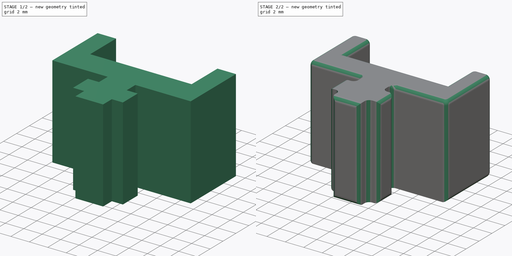
[diagram: build sequence overview — one tinted view per stage of 2, left to right]
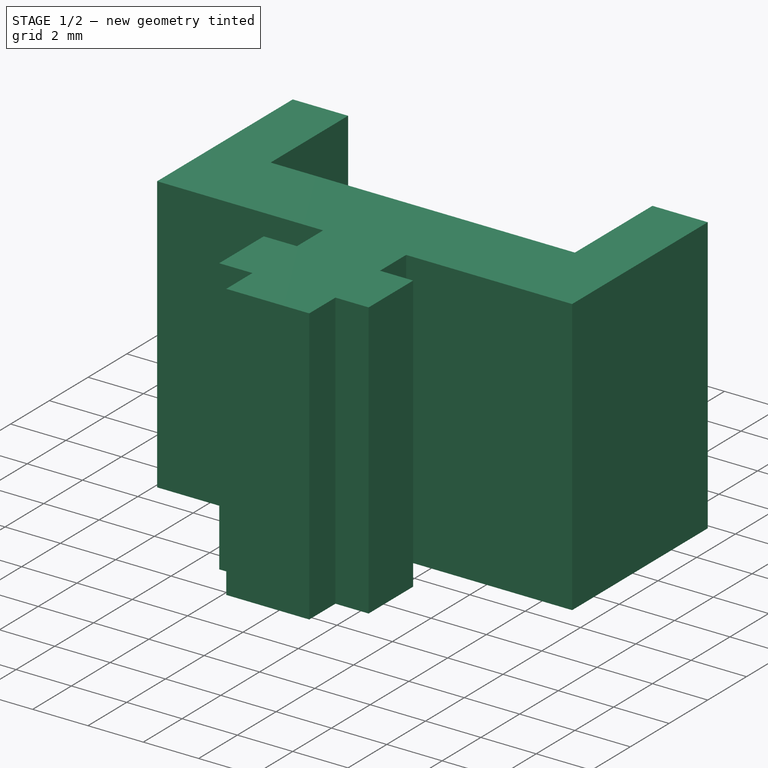
[diagram: stage 1 of 2 — iso view after this stage's code; geometry added in this stage tinted green]
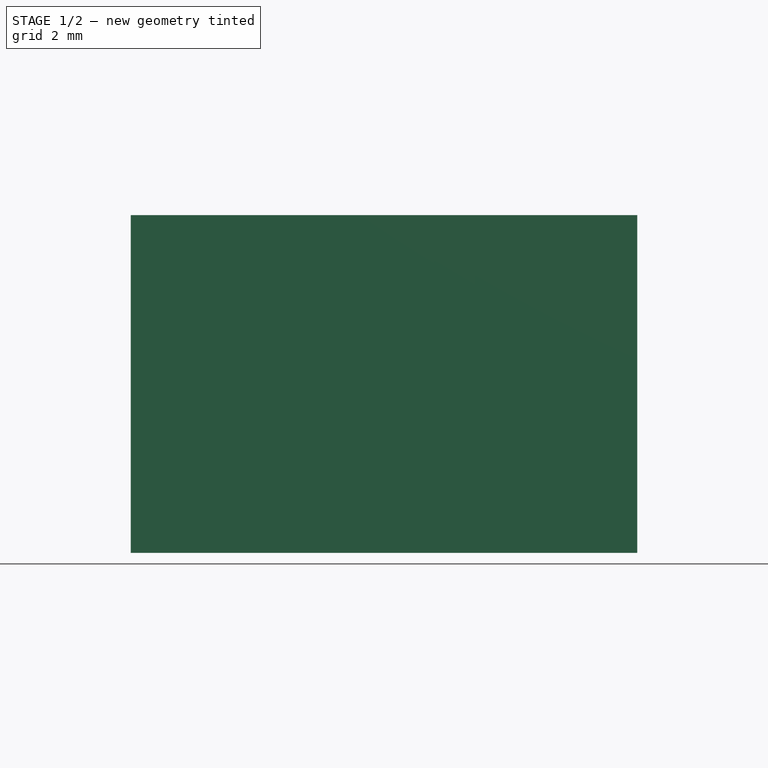
[diagram: stage 1 of 2 — front view after this stage's code; geometry added in this stage tinted green]
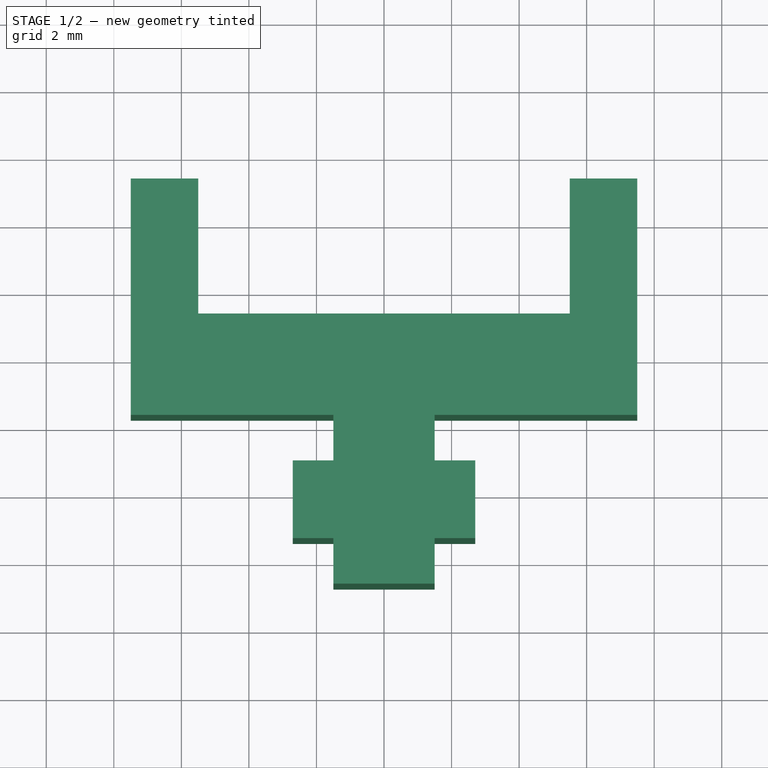
[diagram: stage 1 of 2 — top view after this stage's code; geometry added in this stage tinted green]
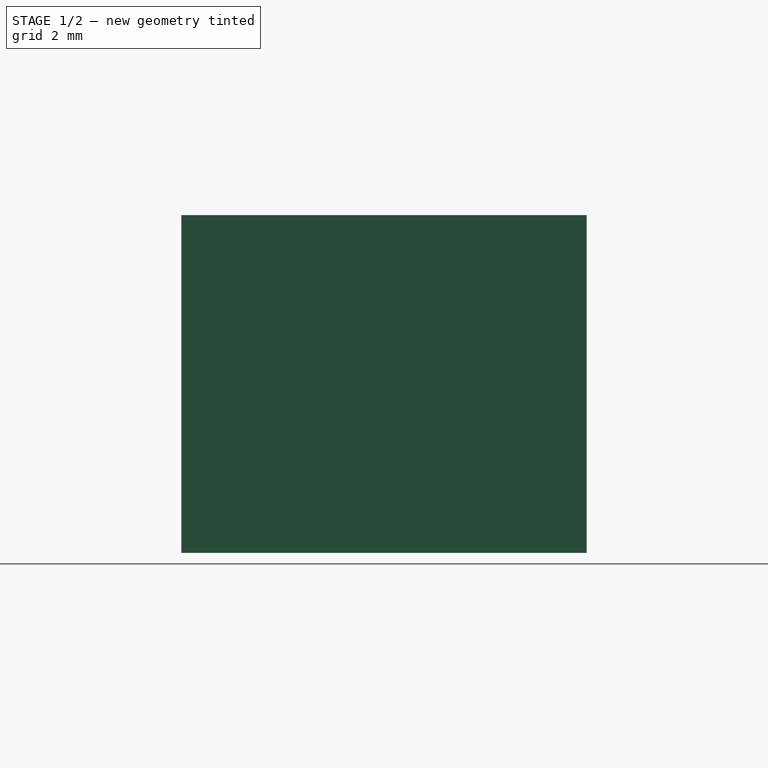
[diagram: stage 1 of 2 — right view after this stage's code; geometry added in this stage tinted green]
FCSTD DOCUMENT  (FreeCAD 0.21R33694 (Git))
Label: MakerbeamXl_plastic_slidein_adapter
License: All rights reserved
LicenseURL: https://en.wikipedia.org/wiki/All_rights_reserved
objects: Sketcher::SketchObject×1, PartDesign::Pad×1, PartDesign::Fillet×1, PartDesign::Body×1
note: 6 computed .brp shape members not serialized (recipe doc carries the construction recipe); baked Part::Feature solids carry a one-line shape summary decoded from their .brp

FEATURE [Sketcher::SketchObject] Sketch
  FullyConstrained = true
  MapMode = 5
  Support = -> [XY_Plane]
  sketch-geometry (26):
    g0: LineSegment StartX=-7.5 StartY=23.2831 StartZ=0 EndX=-7.5 EndY=16.2831 EndZ=0
    g1: LineSegment StartX=-7.5 StartY=16.2831 StartZ=0 EndX=-1.5 EndY=16.2831 EndZ=0
    g2: LineSegment StartX=-1.5 StartY=16.2831 StartZ=0 EndX=-1.5 EndY=14.9331 EndZ=0
    g3: LineSegment StartX=-1.5 StartY=14.9331 StartZ=0 EndX=-2.7 EndY=14.9331 EndZ=0
    g4: LineSegment StartX=-2.7 StartY=14.9331 StartZ=0 EndX=-2.7 EndY=12.6331 EndZ=0
    g5: LineSegment StartX=-2.7 StartY=12.6331 StartZ=0 EndX=-1.5 EndY=12.6331 EndZ=0
    g6: LineSegment StartX=-1.5 StartY=12.6331 StartZ=0 EndX=-1.5 EndY=11.2831 EndZ=0
    g7: LineSegment StartX=-1.5 StartY=11.2831 StartZ=0 EndX=1.5 EndY=11.2831 EndZ=0
    g8: LineSegment StartX=1.5 StartY=11.2831 StartZ=0 EndX=1.5 EndY=12.6331 EndZ=0
    g9: LineSegment StartX=1.5 StartY=12.6331 StartZ=0 EndX=2.7 EndY=12.6331 EndZ=0
    g10: LineSegment StartX=2.7 StartY=12.6331 StartZ=0 EndX=2.7 EndY=14.9331 EndZ=0
    g11: LineSegment StartX=2.7 StartY=14.9331 StartZ=0 EndX=1.5 EndY=14.9331 EndZ=0
    g12: LineSegment StartX=1.5 StartY=14.9331 StartZ=0 EndX=1.5 EndY=16.2831 EndZ=0
    g13: LineSegment StartX=1.5 StartY=16.2831 StartZ=0 EndX=7.5 EndY=16.2831 EndZ=0
    g14: LineSegment StartX=7.5 StartY=16.2831 StartZ=0 EndX=7.5 EndY=23.2831 EndZ=0
    g15: LineSegment StartX=7.5 StartY=23.2831 StartZ=0 EndX=5.5 EndY=23.2831 EndZ=0
    g16: LineSegment StartX=5.5 StartY=23.2831 StartZ=0 EndX=5.5 EndY=19.2831 EndZ=0
    g17: LineSegment StartX=5.5 StartY=19.2831 StartZ=0 EndX=-5.5 EndY=19.2831 EndZ=0
    g18: LineSegment StartX=-5.5 StartY=19.2831 StartZ=0 EndX=-5.5 EndY=23.2831 EndZ=0
    g19: LineSegment StartX=-5.5 StartY=23.2831 StartZ=0 EndX=-7.5 EndY=23.2831 EndZ=0
    g20: LineSegment StartX=-1.5 StartY=12.6331 StartZ=0 EndX=1.5 EndY=12.6331 EndZ=0
    g21: LineSegment StartX=-1.5 StartY=14.9331 StartZ=0 EndX=1.5 EndY=14.9331 EndZ=0
    g22: LineSegment StartX=-1.5 StartY=16.2831 StartZ=0 EndX=1.5 EndY=16.2831 EndZ=0
    g23: LineSegment StartX=-5.5 StartY=23.2831 StartZ=0 EndX=5.5 EndY=23.2831 EndZ=0
    g24: LineSegment StartX=-1.5 StartY=14.9331 StartZ=0 EndX=-1.5 EndY=12.6331 EndZ=0
    g25: LineSegment StartX=1.5 StartY=14.9331 StartZ=0 EndX=1.5 EndY=12.6331 EndZ=0
  constraints (70):
    c: Coincident(g0,g1)
    c: Horizontal(g1)
    c: Coincident(g1,g2)
    c: Coincident(g2,g3)
    c: Horizontal(g3)
    c: Coincident(g3,g4)
    c: Coincident(g4,g5)
    c: Coincident(g5,g6)
    c: Coincident(g6,g7)
    c: Coincident(g7,g8)
    c: Vertical(g8)
    c: Coincident(g8,g9)
    c: Horizontal(g9)
    c: Coincident(g9,g10)
    c: Vertical(g10)
    c: Coincident(g10,g11)
    c: Coincident(g11,g12)
    c: Coincident(g12,g13)
    c: Horizontal(g13)
    c: Coincident(g13,g14)
    c: Vertical(g14)
    c: Coincident(g14,g15)
    c: Coincident(g15,g16)
    c: Vertical(g16)
    c: Coincident(g16,g17)
    c: Horizontal(g17)
    c: Coincident(g17,g18)
    c: Coincident(g18,g19)
    c: Coincident(g19,g0)
    c: Horizontal(g19)
    c: Vertical(g0)
    c: Vertical(g18)
    c: Vertical(g4)
    c: Vertical(g6)
    c: Vertical(g2)
    c: Vertical(g12)
    c: Horizontal(g15)
    c: Horizontal(g11)
    c: Horizontal(g5)
    c: Coincident(g20,g5)
    c: Coincident(g20,g8)
    c: Coincident(g21,g2)
    c: Coincident(g21,g11)
    c: Coincident(g22,g1)
    c: Coincident(g22,g12)
    c: Coincident(g23,g18)
    c: Coincident(g23,g15)
    c: Horizontal(g21)
    c: Horizontal(g20)
    c: Coincident(g24,g2)
    c: Coincident(g24,g5)
    c: Coincident(g25,g11)
    c: Coincident(g25,g8)
    c: Vertical(g24)
    c: Vertical(g25)
    c: Symmetric(g6,g7,g-2)
    c: Symmetric(g18,g15,g-2)
    c: Equal(g15,g19)
    c: Equal(g3,g11)
    c: Equal(g1,g13)
    c: Equal(g0,g14)
    c: DistanceY(g7,g12) = 5
    c: DistanceY(g4,g4) = 2.3
    c: DistanceX(g22,g22) = 3
    c: DistanceX(g3,g3) = 1.2
    c: DistanceX(g0,g14) = 15
    c: Equal(g6,g2)
    c: DistanceX(g19,g19) = 2
    c: DistanceY(g14,g14) = 7
    c: DistanceY(g16,g16) = 4
FEATURE [PartDesign::Pad] Pad
  Direction = (0,0,1)
  Length = 10
  Length2 = 10
  Profile = -> Sketch
  ReferenceAxis = -> Sketch [N_Axis]
  Type = 0
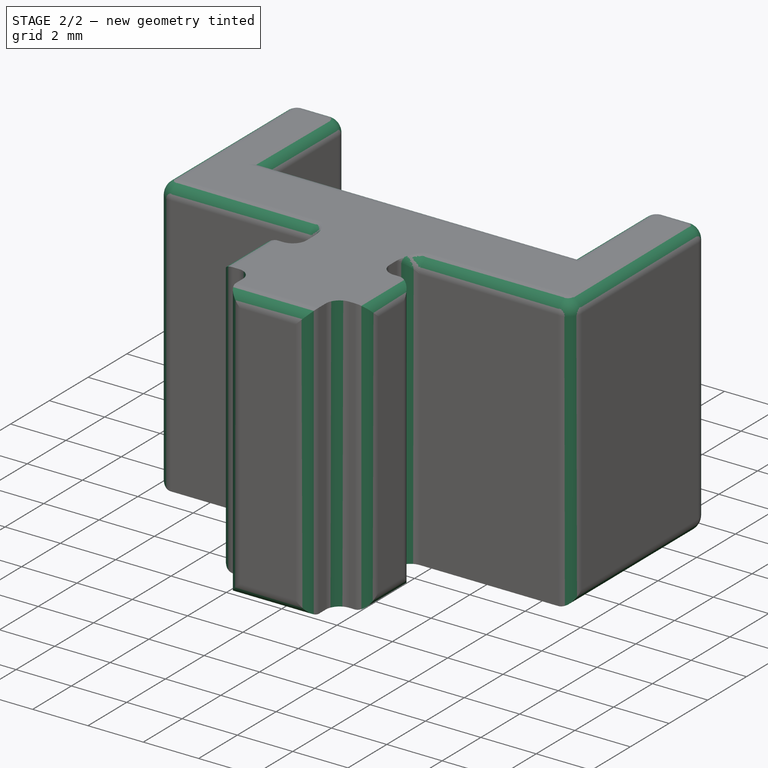
[diagram: stage 2 of 2 — iso view after this stage's code; geometry added in this stage tinted green]
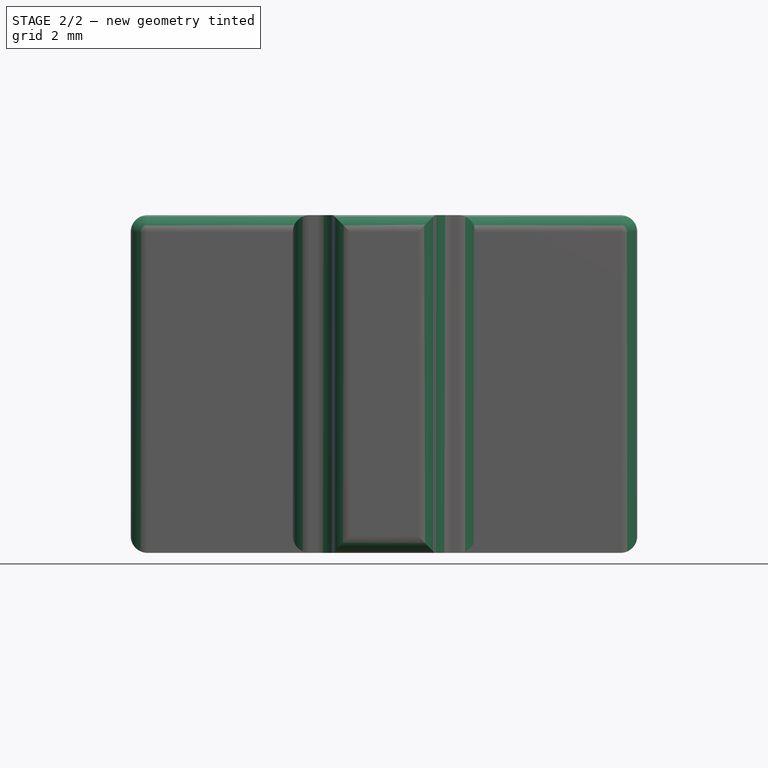
[diagram: stage 2 of 2 — front view after this stage's code; geometry added in this stage tinted green]
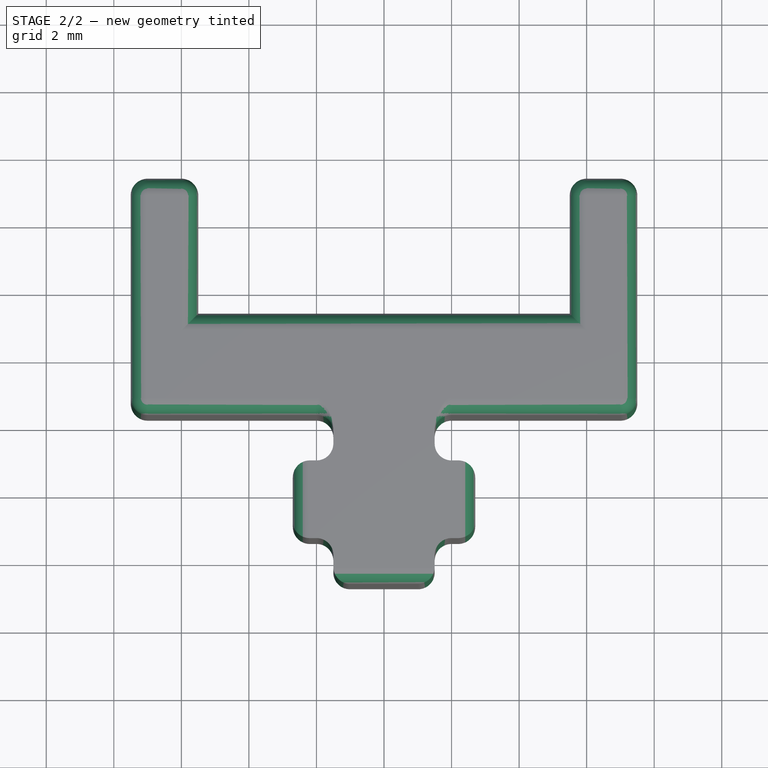
[diagram: stage 2 of 2 — top view after this stage's code; geometry added in this stage tinted green]
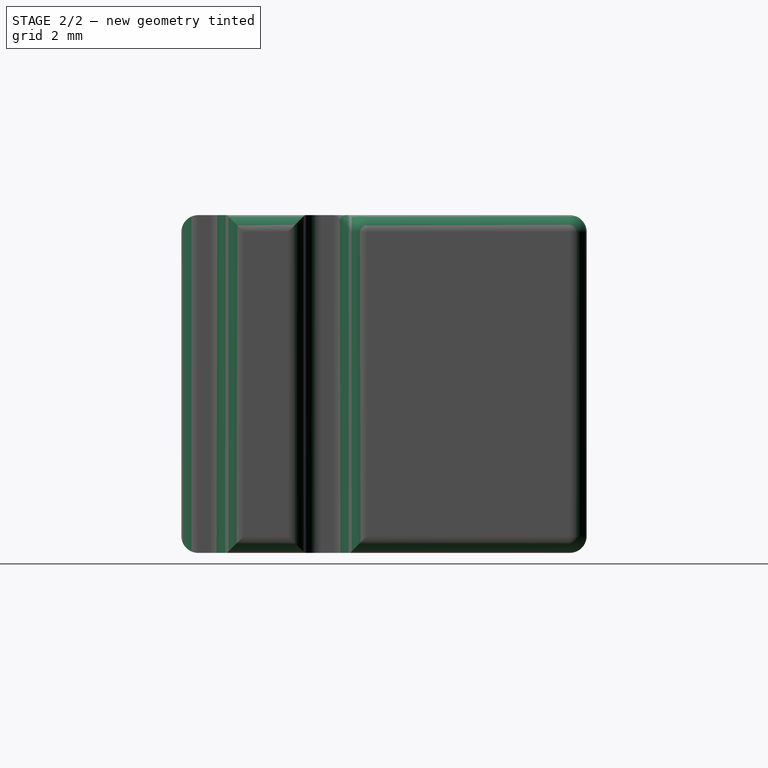
[diagram: stage 2 of 2 — right view after this stage's code; geometry added in this stage tinted green]
FEATURE [PartDesign::Fillet] Fillet
  Base = -> Pad [Edge29,Edge32,Edge33,Edge34,Edge23,Edge20,Edge24,Edge25,Edge15,Edge26,Edge35,Edge17,Edge8,Edge11,Edge14,Edge38,Edge41,Edge5,Edge2,Edge1,Edge44,Edge47,Edge56,Edge48,Edge45,Edge59,Edge3,Edge4,Edge60,Edge49,Edge46,Edge7,Edge43,Edge16,Edge55,Edge54,Edge57,Edge51,Edge52,Edge58]
  BaseFeature = -> Pad
  Radius = 0.5
  SupportTransform = false
  UseAllEdges = false
FEATURE [PartDesign::Body] Body
  Group = -> [Sketch,Pad,Fillet]
  Origin = -> Origin
  Tip = -> Fillet
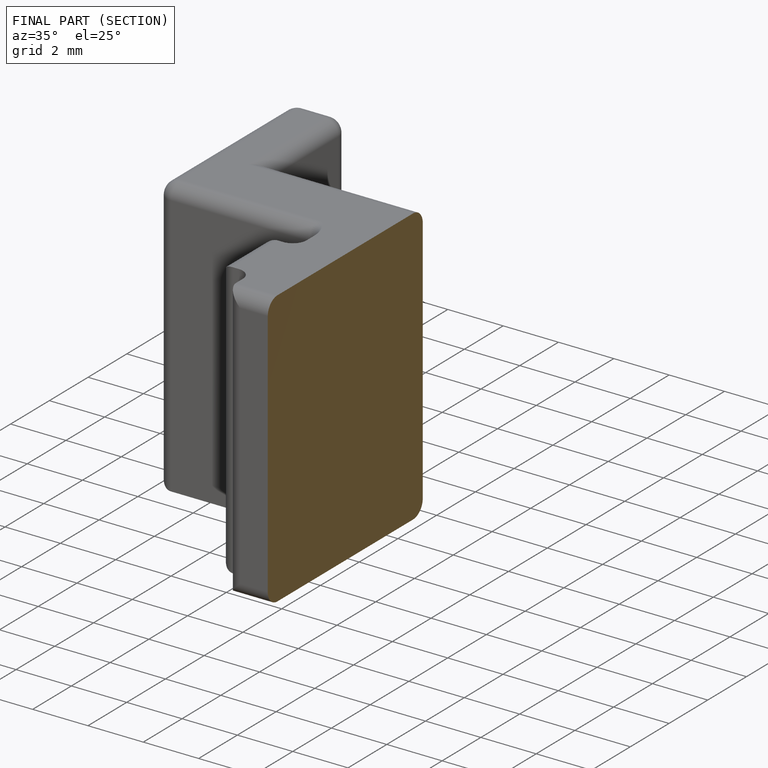
[diagram: finished part — half-section view (interior)]
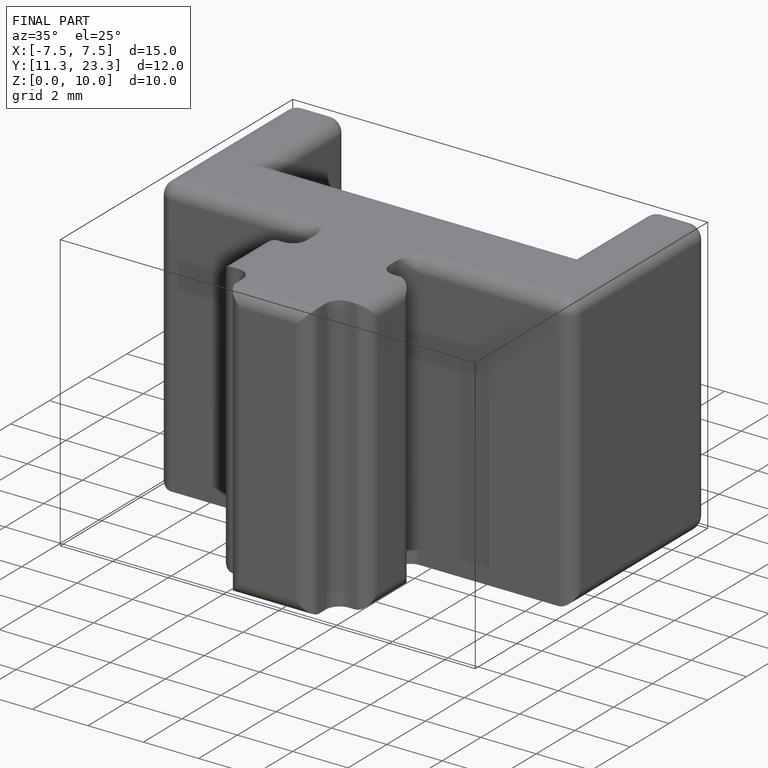
[diagram: finished part — iso view with bounding-box wireframe]
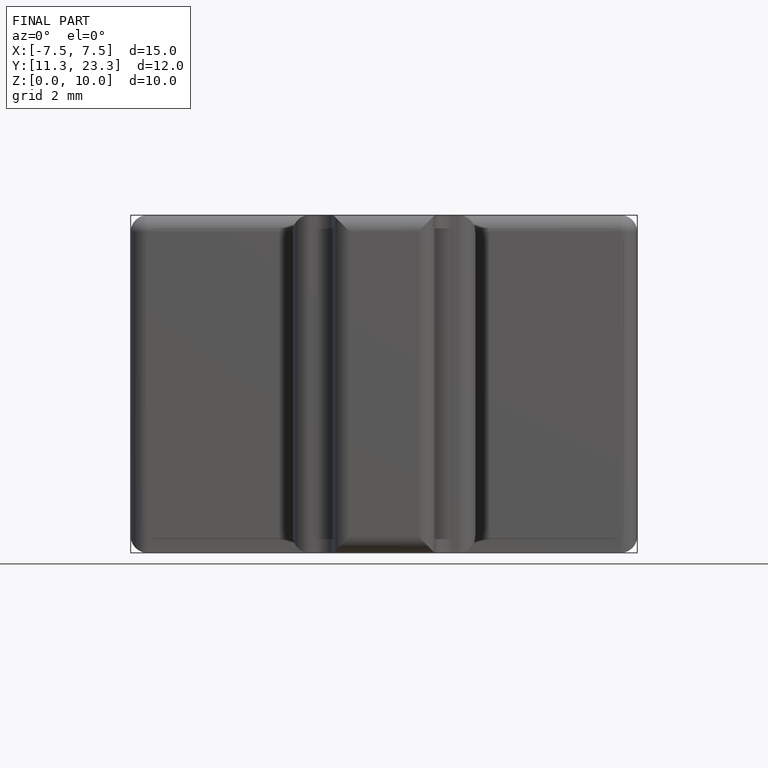
[diagram: finished part — front view with bounding-box wireframe]
